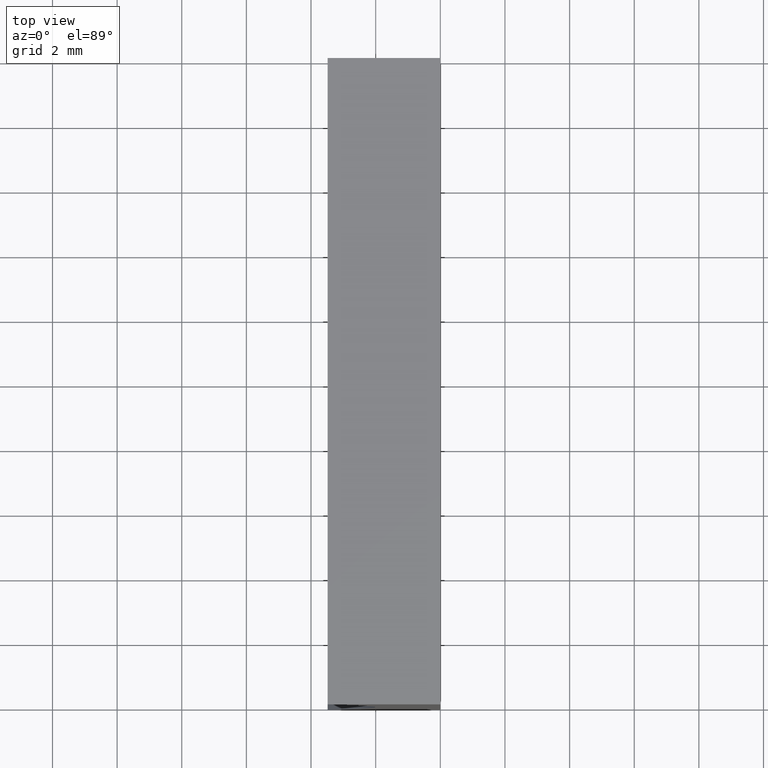
[diagram: clean part render]
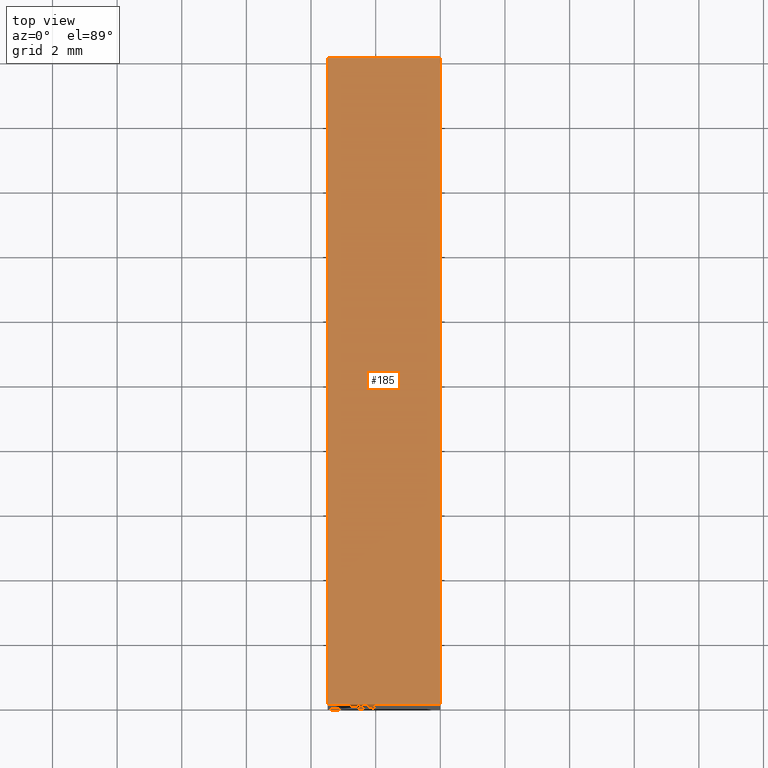
[diagram: same view with one face highlighted and labeled with its STEP entity id]
A machine part, top view. The second image highlights one B-rep face of the part: STEP entity #185.
In plain terms, the highlighted planar face has unit normal (-0, 0, -1).
Its self-contained STEP definition (entity closure, byte-faithful):
#11 = VECTOR ( 'NONE', #161, 1000.000000000000000 ) ;
#13 = EDGE_CURVE ( 'NONE', #26, #39, #18, .T. ) ;
#17 = CARTESIAN_POINT ( 'NONE',  ( 6.123233995736766300E-016, 20.00000000000000000, 10.00000000000000000 ) ) ;
#18 = LINE ( 'NONE', #147, #197 ) ;
#23 = EDGE_CURVE ( 'NONE', #172, #191, #28, .T. ) ;
#26 = VERTEX_POINT ( 'NONE', #17 ) ;
#28 = LINE ( 'NONE', #139, #11 ) ;
#35 = EDGE_CURVE ( 'NONE', #172, #26, #137, .T. ) ;
#39 = VERTEX_POINT ( 'NONE', #70 ) ;
#57 = CARTESIAN_POINT ( 'NONE',  ( 6.123233995736766300E-016, 0.0000000000000000000, 10.00000000000000000 ) ) ;
#63 = DIRECTION ( 'NONE',  ( -1.000000000000000000, 0.0000000000000000000, 4.977683401087795800E-016 ) ) ;
#70 = CARTESIAN_POINT ( 'NONE',  ( 6.123233995736766300E-016, 0.0000000000000000000, 10.00000000000000000 ) ) ;
#74 = EDGE_CURVE ( 'NONE', #191, #39, #189, .T. ) ;
#83 = PLANE ( 'NONE',  #134 ) ;
#99 = ORIENTED_EDGE ( 'NONE', *, *, #35, .F. ) ;
#104 = ORIENTED_EDGE ( 'NONE', *, *, #13, .F. ) ;
#105 = DIRECTION ( 'NONE',  ( 1.000000000000000000, -0.0000000000000000000, -4.977683401087795800E-016 ) ) ;
#114 = DIRECTION ( 'NONE',  ( 1.000000000000000000, -0.0000000000000000000, -4.977683401087795800E-016 ) ) ;
#115 = ORIENTED_EDGE ( 'NONE', *, *, #74, .T. ) ;
#119 = CARTESIAN_POINT ( 'NONE',  ( -3.485001628664671400, 20.00000000000000000, 10.00000000000000200 ) ) ;
#132 = VECTOR ( 'NONE', #105, 1000.000000000000000 ) ;
#134 = AXIS2_PLACEMENT_3D ( 'NONE', #154, #179, #63 ) ;
#137 = LINE ( 'NONE', #175, #166 ) ;
#139 = CARTESIAN_POINT ( 'NONE',  ( -3.485001628664671400, 20.00000000000000000, 10.00000000000000200 ) ) ;
#141 = ORIENTED_EDGE ( 'NONE', *, *, #23, .T. ) ;
#147 = CARTESIAN_POINT ( 'NONE',  ( 6.123233995736766300E-016, 20.00000000000000000, 10.00000000000000000 ) ) ;
#154 = CARTESIAN_POINT ( 'NONE',  ( 6.123233995736766300E-016, 20.00000000000000000, 10.00000000000000000 ) ) ;
#161 = DIRECTION ( 'NONE',  ( -0.0000000000000000000, -1.000000000000000000, -0.0000000000000000000 ) ) ;
#166 = VECTOR ( 'NONE', #114, 1000.000000000000000 ) ;
#169 = EDGE_LOOP ( 'NONE', ( #115, #104, #99, #141 ) ) ;
#172 = VERTEX_POINT ( 'NONE', #119 ) ;
#175 = CARTESIAN_POINT ( 'NONE',  ( 6.123233995736766300E-016, 20.00000000000000000, 10.00000000000000000 ) ) ;
#177 = DIRECTION ( 'NONE',  ( -0.0000000000000000000, -1.000000000000000000, -0.0000000000000000000 ) ) ;
#179 = DIRECTION ( 'NONE',  ( -4.977683401087795800E-016, 0.0000000000000000000, -1.000000000000000000 ) ) ;
#184 = FACE_OUTER_BOUND ( 'NONE', #169, .T. ) ;
#185 = ADVANCED_FACE ( 'NONE', ( #184 ), #83, .F. ) ;
#189 = LINE ( 'NONE', #57, #132 ) ;
#191 = VERTEX_POINT ( 'NONE', #199 ) ;
#197 = VECTOR ( 'NONE', #177, 1000.000000000000000 ) ;
#199 = CARTESIAN_POINT ( 'NONE',  ( -3.485001628664671400, 0.0000000000000000000, 10.00000000000000200 ) ) ;